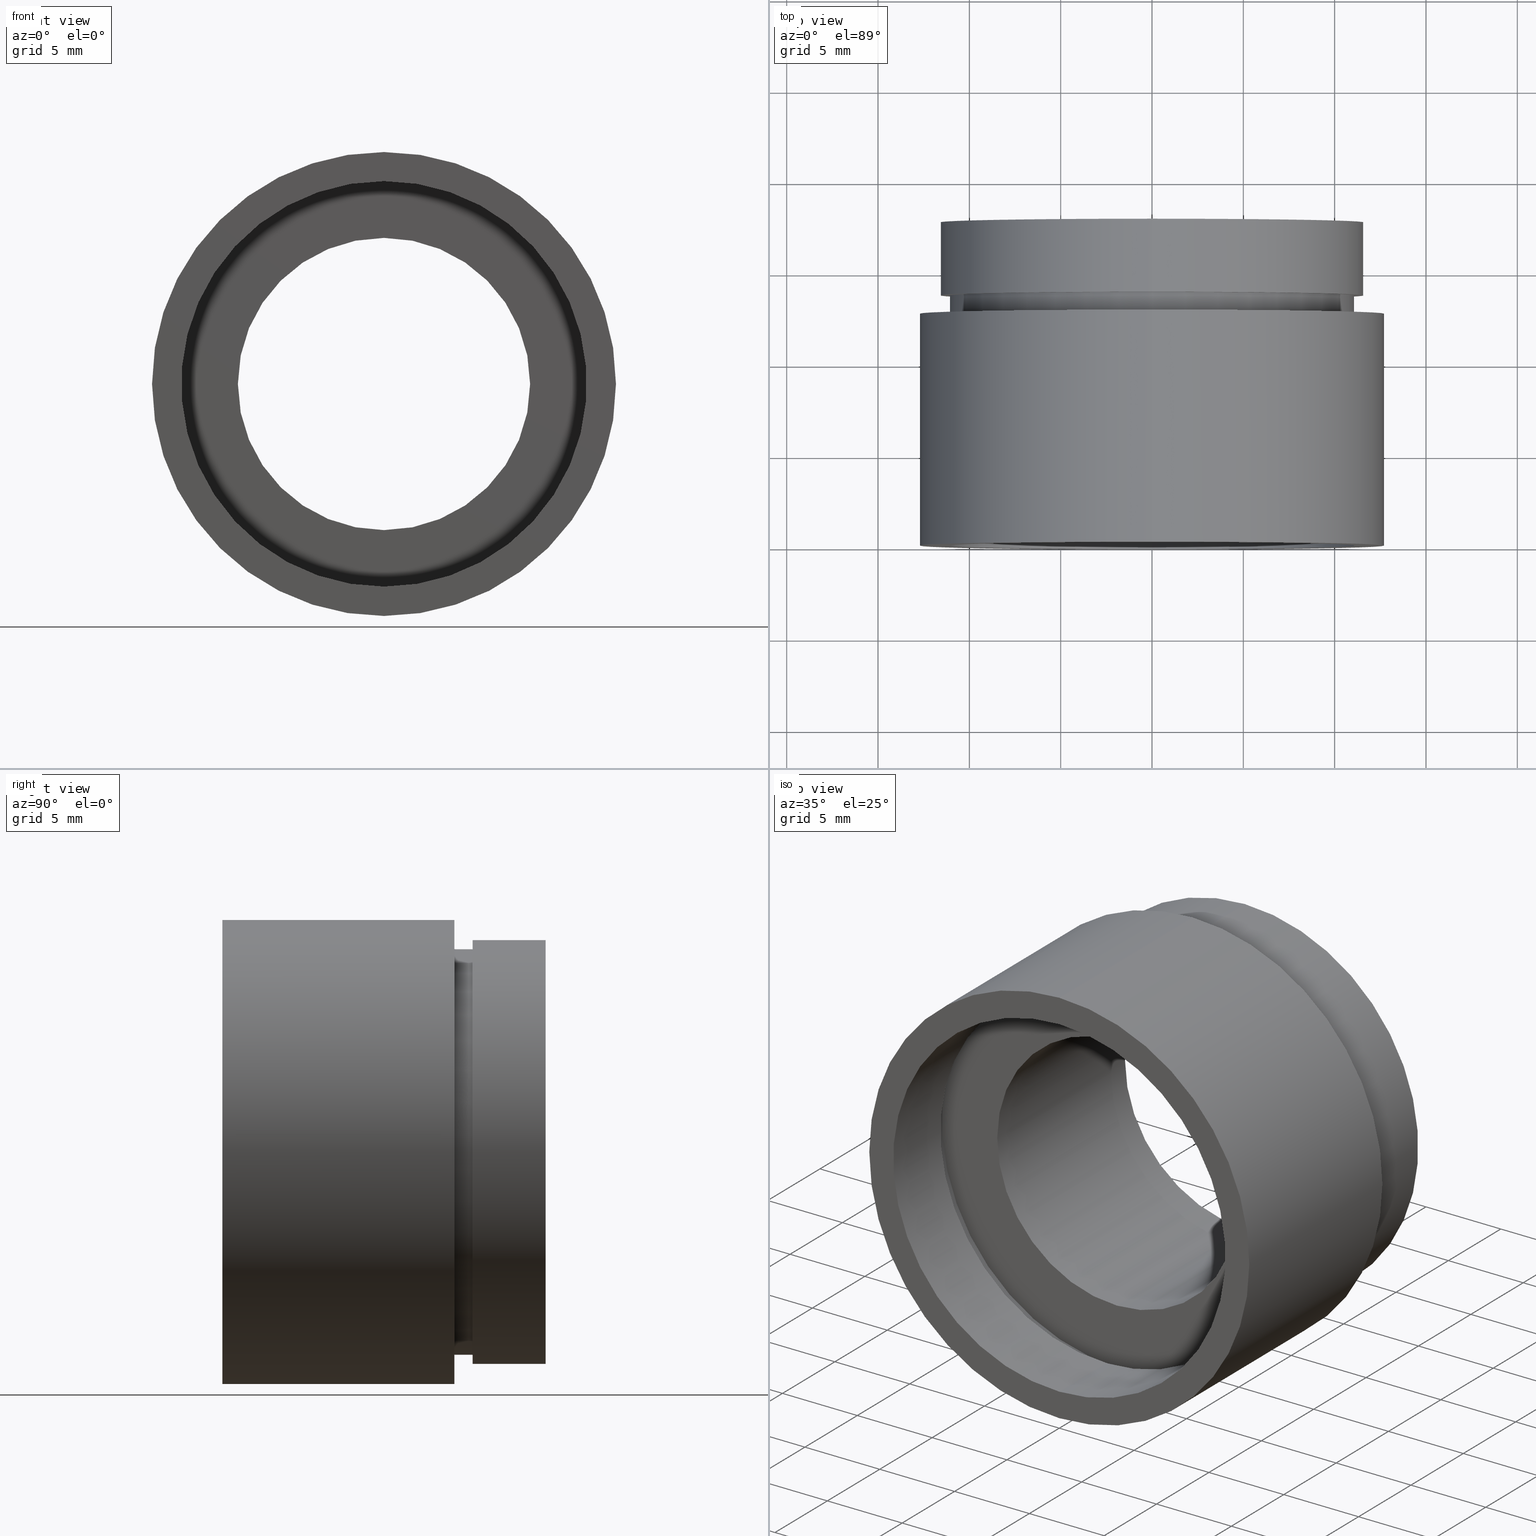
[diagram: canonical four-view strip — front | top / right | iso, engineering-drawing reading convention]
A machine part, canonical four-view strip (front | top / right | iso — engineering-drawing reading convention). The complete STEP part file that produces these views, byte-faithful:
ISO-10303-21;
HEADER;
FILE_DESCRIPTION (( 'STEP AP214' ),
    '1' );
FILE_NAME ('503070.STEP',
    '2019-09-10T01:41:34',
    ( '' ),
    ( '' ),
    'SwSTEP 2.0',
    'SolidWorks 2016',
    '' );
FILE_SCHEMA (( 'AUTOMOTIVE_DESIGN' ));
ENDSEC;

DATA;
#1 = ADVANCED_FACE ( 'NONE', ( #172 ), #606, .T. ) ;
#2 = APPLICATION_PROTOCOL_DEFINITION ( 'draft international standard', 'automotive_design', 1998, #5 ) ;
#3 = FILL_AREA_STYLE ('',( #453 ) ) ;
#4 = EDGE_LOOP ( 'NONE', ( #94, #389, #225, #102 ) ) ;
#5 = APPLICATION_CONTEXT ( 'automotive_design' ) ;
#6 = SURFACE_SIDE_STYLE ('',( #143 ) ) ;
#7 = UNCERTAINTY_MEASURE_WITH_UNIT (LENGTH_MEASURE( 1.000000000000000100E-005 ), #376, 'distance_accuracy_value', 'NONE');
#8 = PRESENTATION_LAYER_ASSIGNMENT (  '', '', ( #595 ) ) ;
#9 = ORIENTED_EDGE ( 'NONE', *, *, #440, .T. ) ;
#10 = EDGE_LOOP ( 'NONE', ( #241, #251, #447, #198 ) ) ;
#11 = MECHANICAL_DESIGN_GEOMETRIC_PRESENTATION_REPRESENTATION (  '', ( #249 ), #224 ) ;
#12 = AXIS2_PLACEMENT_3D ( 'NONE', #135, #36, #511 ) ;
#13 = COLOUR_RGB ( '',1.000000000000000000, 1.000000000000000000, 1.000000000000000000 ) ;
#14 = CIRCLE ( 'NONE', #160, 11.10000000000001700 ) ;
#15 = ORIENTED_EDGE ( 'NONE', *, *, #429, .T. ) ;
#16 = MECHANICAL_DESIGN_GEOMETRIC_PRESENTATION_REPRESENTATION (  '', ( #368 ), #486 ) ;
#17 = AXIS2_PLACEMENT_3D ( 'NONE', #229, #90, #474 ) ;
#18 = DIRECTION ( 'NONE',  ( -0.0000000000000000000, 1.000000000000000000, -0.0000000000000000000 ) ) ;
#19 = CARTESIAN_POINT ( 'NONE',  ( 0.0000000000000000000, 5.499999999999976900, 0.0000000000000000000 ) ) ;
#20 = COLOUR_RGB ( '',1.000000000000000000, 1.000000000000000000, 1.000000000000000000 ) ;
#21 = VERTEX_POINT ( 'NONE', #212 ) ;
#22 = SURFACE_STYLE_USAGE ( .BOTH. , #497 ) ;
#23 = DIRECTION ( 'NONE',  ( -0.0000000000000000000, 1.000000000000000000, -0.0000000000000000000 ) ) ;
#24 = PRODUCT_DEFINITION_FORMATION_WITH_SPECIFIED_SOURCE ( '�κ�', '', #378, .NOT_KNOWN. ) ;
#25 = STYLED_ITEM ( 'NONE', ( #123 ), #252 ) ;
#26 = CARTESIAN_POINT ( 'NONE',  ( 0.0000000000000000000, 5.499999999999976900, 11.70000000000001700 ) ) ;
#27 = SURFACE_SIDE_STYLE ('',( #227 ) ) ;
#28 = EDGE_LOOP ( 'NONE', ( #345, #104, #253, #405 ) ) ;
#29 =( NAMED_UNIT ( * ) PLANE_ANGLE_UNIT ( ) SI_UNIT ( $, .RADIAN. ) );
#30 = CARTESIAN_POINT ( 'NONE',  ( 0.0000000000000000000, 12.69999999999998900, 0.0000000000000000000 ) ) ;
#31 = STYLED_ITEM ( 'NONE', ( #60 ), #472 ) ;
#32 = CARTESIAN_POINT ( 'NONE',  ( 0.0000000000000000000, 161.3761669434274500, 12.70000000000002800 ) ) ;
#33 = FILL_AREA_STYLE ('',( #408 ) ) ;
#34 =( NAMED_UNIT ( * ) SI_UNIT ( $, .STERADIAN. ) SOLID_ANGLE_UNIT ( ) );
#35 = EDGE_LOOP ( 'NONE', ( #223, #570 ) ) ;
#36 = DIRECTION ( 'NONE',  ( -0.0000000000000000000, 1.000000000000000000, 0.0000000000000000000 ) ) ;
#37 = CYLINDRICAL_SURFACE ( 'NONE', #169, 12.70000000000002800 ) ;
#38 = EDGE_CURVE ( 'NONE', #353, #234, #381, .T. ) ;
#39 = ORIENTED_EDGE ( 'NONE', *, *, #81, .F. ) ;
#40 = DIRECTION ( 'NONE',  ( -0.0000000000000000000, 1.000000000000000000, -0.0000000000000000000 ) ) ;
#41 = CIRCLE ( 'NONE', #315, 11.10000000000001700 ) ;
#42 = VECTOR ( 'NONE', #221, 1000.000000000000000 ) ;
#43 = EDGE_CURVE ( 'NONE', #476, #70, #14, .T. ) ;
#44 = ADVANCED_FACE ( 'NONE', ( #468, #340 ), #304, .F. ) ;
#45 = EDGE_LOOP ( 'NONE', ( #182, #501, #58, #274 ) ) ;
#46 = PRODUCT_DEFINITION_CONTEXT ( 'detailed design', #5, 'design' ) ;
#47 =( NAMED_UNIT ( * ) SI_UNIT ( $, .STERADIAN. ) SOLID_ANGLE_UNIT ( ) );
#48 = VECTOR ( 'NONE', #273, 1000.000000000000000 ) ;
#49 = EDGE_CURVE ( 'NONE', #485, #70, #186, .T. ) ;
#50 = AXIS2_PLACEMENT_3D ( 'NONE', #288, #150, #75 ) ;
#51 = ORIENTED_EDGE ( 'NONE', *, *, #510, .T. ) ;
#52 = VECTOR ( 'NONE', #602, 1000.000000000000000 ) ;
#53 = FACE_OUTER_BOUND ( 'NONE', #481, .T. ) ;
#54 = ORIENTED_EDGE ( 'NONE', *, *, #97, .F. ) ;
#55 = PRESENTATION_LAYER_ASSIGNMENT (  '', '', ( #25 ) ) ;
#56 = MECHANICAL_DESIGN_GEOMETRIC_PRESENTATION_REPRESENTATION (  '', ( #531 ), #100 ) ;
#57 = ORIENTED_EDGE ( 'NONE', *, *, #448, .F. ) ;
#58 = ORIENTED_EDGE ( 'NONE', *, *, #275, .T. ) ;
#59 = AXIS2_PLACEMENT_3D ( 'NONE', #170, #354, #74 ) ;
#60 = PRESENTATION_STYLE_ASSIGNMENT (( #331 ) ) ;
#61 = DIRECTION ( 'NONE',  ( 0.0000000000000000000, 0.0000000000000000000, 1.000000000000000000 ) ) ;
#62 = CIRCLE ( 'NONE', #624, 11.10000000000001900 ) ;
#63 = CARTESIAN_POINT ( 'NONE',  ( 0.0000000000000000000, 5.499999999999976900, 0.0000000000000000000 ) ) ;
#64 = AXIS2_PLACEMENT_3D ( 'NONE', #458, #78, #218 ) ;
#65 =( LENGTH_UNIT ( ) NAMED_UNIT ( * ) SI_UNIT ( .MILLI., .METRE. ) );
#66 = EDGE_CURVE ( 'NONE', #70, #476, #116, .T. ) ;
#67 = CARTESIAN_POINT ( 'NONE',  ( 0.0000000000000000000, 17.69999999999996700, 0.0000000000000000000 ) ) ;
#68 = EDGE_LOOP ( 'NONE', ( #575, #192 ) ) ;
#69 = CIRCLE ( 'NONE', #357, 8.000000000000019500 ) ;
#70 = VERTEX_POINT ( 'NONE', #600 ) ;
#71 = CARTESIAN_POINT ( 'NONE',  ( 0.0000000000000000000, 161.3761669434274500, 0.0000000000000000000 ) ) ;
#72 = CARTESIAN_POINT ( 'NONE',  ( 0.0000000000000000000, -2.775557561562891400E-014, 0.0000000000000000000 ) ) ;
#73 = DIRECTION ( 'NONE',  ( -0.0000000000000000000, 1.000000000000000000, -0.0000000000000000000 ) ) ;
#74 = DIRECTION ( 'NONE',  ( 0.0000000000000000000, 0.0000000000000000000, 1.000000000000000000 ) ) ;
#75 = DIRECTION ( 'NONE',  ( 0.0000000000000000000, 0.0000000000000000000, 1.000000000000000000 ) ) ;
#76 = CARTESIAN_POINT ( 'NONE',  ( 0.0000000000000000000, 161.3761669434274500, 0.0000000000000000000 ) ) ;
#77 = PRESENTATION_STYLE_ASSIGNMENT (( #144 ) ) ;
#78 = DIRECTION ( 'NONE',  ( 0.0000000000000000000, -1.000000000000000000, 0.0000000000000000000 ) ) ;
#79 = CARTESIAN_POINT ( 'NONE',  ( 0.0000000000000000000, 4.499999999999976000, 11.70000000000001700 ) ) ;
#80 = CARTESIAN_POINT ( 'NONE',  ( 1.420590287010931700E-015, 17.69999999999996700, -11.60000000000001700 ) ) ;
#81 = EDGE_CURVE ( 'NONE', #469, #373, #534, .T. ) ;
#82 = PLANE ( 'NONE',  #204 ) ;
#83 = VERTEX_POINT ( 'NONE', #348 ) ;
#84 = EDGE_LOOP ( 'NONE', ( #581, #344, #101, #109 ) ) ;
#85 = DIRECTION ( 'NONE',  ( -0.0000000000000000000, 1.000000000000000000, -0.0000000000000000000 ) ) ;
#86 = CARTESIAN_POINT ( 'NONE',  ( 0.0000000000000000000, 161.3761669434274500, 0.0000000000000000000 ) ) ;
#87 = DIRECTION ( 'NONE',  ( -0.0000000000000000000, 1.000000000000000000, -0.0000000000000000000 ) ) ;
#88 = LINE ( 'NONE', #32, #436 ) ;
#89 = DIRECTION ( 'NONE',  ( 0.0000000000000000000, 0.0000000000000000000, 1.000000000000000000 ) ) ;
#90 = DIRECTION ( 'NONE',  ( 0.0000000000000000000, 0.0000000000000000000, 1.000000000000000000 ) ) ;
#91 = ORIENTED_EDGE ( 'NONE', *, *, #152, .F. ) ;
#92 = CIRCLE ( 'NONE', #584, 8.000000000000019500 ) ;
#93 = FILL_AREA_STYLE_COLOUR ( '', #146 ) ;
#94 = ORIENTED_EDGE ( 'NONE', *, *, #510, .F. ) ;
#95 = ADVANCED_FACE ( 'NONE', ( #53 ), #240, .F. ) ;
#96 = FACE_OUTER_BOUND ( 'NONE', #84, .T. ) ;
#97 = EDGE_CURVE ( 'NONE', #173, #597, #92, .T. ) ;
#98 =( NAMED_UNIT ( * ) PLANE_ANGLE_UNIT ( ) SI_UNIT ( $, .RADIAN. ) );
#99 = DIRECTION ( 'NONE',  ( -0.0000000000000000000, 1.000000000000000000, -0.0000000000000000000 ) ) ;
#100 =( GEOMETRIC_REPRESENTATION_CONTEXT ( 3 ) GLOBAL_UNCERTAINTY_ASSIGNED_CONTEXT ( ( #163 ) ) GLOBAL_UNIT_ASSIGNED_CONTEXT ( ( #424, #466, #471 ) ) REPRESENTATION_CONTEXT ( 'NONE', 'WORKASPACE' ) );
#101 = ORIENTED_EDGE ( 'NONE', *, *, #478, .T. ) ;
#102 = ORIENTED_EDGE ( 'NONE', *, *, #195, .T. ) ;
#103 = AXIS2_PLACEMENT_3D ( 'NONE', #166, #549, #490 ) ;
#104 = ORIENTED_EDGE ( 'NONE', *, *, #207, .T. ) ;
#105 = AXIS2_PLACEMENT_3D ( 'NONE', #518, #140, #374 ) ;
#106 = VERTEX_POINT ( 'NONE', #443 ) ;
#107 = AXIS2_PLACEMENT_3D ( 'NONE', #71, #302, #598 ) ;
#108 = CIRCLE ( 'NONE', #242, 11.60000000000001700 ) ;
#109 = ORIENTED_EDGE ( 'NONE', *, *, #81, .T. ) ;
#110 = EDGE_CURVE ( 'NONE', #165, #83, #525, .T. ) ;
#111 = UNCERTAINTY_MEASURE_WITH_UNIT (LENGTH_MEASURE( 1.000000000000000100E-005 ), #322, 'distance_accuracy_value', 'NONE');
#112 = CIRCLE ( 'NONE', #298, 12.70000000000003700 ) ;
#113 = CYLINDRICAL_SURFACE ( 'NONE', #431, 11.70000000000001700 ) ;
#114 = DIRECTION ( 'NONE',  ( 0.0000000000000000000, -0.0000000000000000000, -1.000000000000000000 ) ) ;
#115 = DIRECTION ( 'NONE',  ( -0.0000000000000000000, 1.000000000000000000, -0.0000000000000000000 ) ) ;
#116 = CIRCLE ( 'NONE', #121, 11.10000000000001700 ) ;
#117 = ORIENTED_EDGE ( 'NONE', *, *, #540, .T. ) ;
#118 = ADVANCED_FACE ( 'NONE', ( #393 ), #446, .T. ) ;
#119 = CARTESIAN_POINT ( 'NONE',  ( 0.0000000000000000000, 17.69999999999996700, 0.0000000000000000000 ) ) ;
#120 = VECTOR ( 'NONE', #412, 1000.000000000000000 ) ;
#121 = AXIS2_PLACEMENT_3D ( 'NONE', #168, #544, #451 ) ;
#122 = SHAPE_DEFINITION_REPRESENTATION ( #592, #265 ) ;
#123 = PRESENTATION_STYLE_ASSIGNMENT (( #609 ) ) ;
#124 = ORIENTED_EDGE ( 'NONE', *, *, #154, .F. ) ;
#125 = CARTESIAN_POINT ( 'NONE',  ( 0.0000000000000000000, -2.775557561562891400E-014, 0.0000000000000000000 ) ) ;
#126 =( NAMED_UNIT ( * ) SI_UNIT ( $, .STERADIAN. ) SOLID_ANGLE_UNIT ( ) );
#127 =( GEOMETRIC_REPRESENTATION_CONTEXT ( 3 ) GLOBAL_UNCERTAINTY_ASSIGNED_CONTEXT ( ( #7 ) ) GLOBAL_UNIT_ASSIGNED_CONTEXT ( ( #376, #98, #323 ) ) REPRESENTATION_CONTEXT ( 'NONE', 'WORKASPACE' ) );
#128 = CARTESIAN_POINT ( 'NONE',  ( 9.797174393178849300E-016, 161.3761669434274500, -8.000000000000019500 ) ) ;
#129 = CARTESIAN_POINT ( 'NONE',  ( 0.0000000000000000000, 13.69999999999999000, 0.0000000000000000000 ) ) ;
#130 = CARTESIAN_POINT ( 'NONE',  ( 1.420590287010931700E-015, 13.69999999999999000, -11.60000000000001700 ) ) ;
#131 = CARTESIAN_POINT ( 'NONE',  ( 0.0000000000000000000, 12.69999999999998900, 0.0000000000000000000 ) ) ;
#132 = CIRCLE ( 'NONE', #355, 11.70000000000001700 ) ;
#133 = CARTESIAN_POINT ( 'NONE',  ( 12.70000000000003700, 12.69999999999998200, 0.0000000000000000000 ) ) ;
#134 = DIRECTION ( 'NONE',  ( 0.0000000000000000000, 0.0000000000000000000, 1.000000000000000000 ) ) ;
#135 = CARTESIAN_POINT ( 'NONE',  ( 11.10000000000001700, 13.69999999999998000, 0.0000000000000000000 ) ) ;
#136 = VERTEX_POINT ( 'NONE', #612 ) ;
#137 = FACE_OUTER_BOUND ( 'NONE', #28, .T. ) ;
#138 = CARTESIAN_POINT ( 'NONE',  ( 0.0000000000000000000, 4.499999999999976000, 11.10000000000001900 ) ) ;
#139 = ORIENTED_EDGE ( 'NONE', *, *, #589, .T. ) ;
#140 = DIRECTION ( 'NONE',  ( -0.0000000000000000000, 1.000000000000000000, -0.0000000000000000000 ) ) ;
#141 = AXIS2_PLACEMENT_3D ( 'NONE', #517, #85, #309 ) ;
#142 = LINE ( 'NONE', #449, #42 ) ;
#143 = SURFACE_STYLE_FILL_AREA ( #334 ) ;
#144 = SURFACE_STYLE_USAGE ( .BOTH. , #568 ) ;
#145 = ADVANCED_FACE ( 'NONE', ( #286, #434 ), #364, .F. ) ;
#146 = COLOUR_RGB ( '',1.000000000000000000, 1.000000000000000000, 1.000000000000000000 ) ;
#147 = ORIENTED_EDGE ( 'NONE', *, *, #43, .F. ) ;
#148 = ORIENTED_EDGE ( 'NONE', *, *, #202, .F. ) ;
#149 = DIRECTION ( 'NONE',  ( 0.0000000000000000000, 0.0000000000000000000, 1.000000000000000000 ) ) ;
#150 = DIRECTION ( 'NONE',  ( -0.0000000000000000000, 1.000000000000000000, -0.0000000000000000000 ) ) ;
#151 = LINE ( 'NONE', #605, #533 ) ;
#152 = EDGE_CURVE ( 'NONE', #397, #597, #352, .T. ) ;
#153 = PRESENTATION_LAYER_ASSIGNMENT (  '', '', ( #531 ) ) ;
#154 = EDGE_CURVE ( 'NONE', #418, #433, #156, .T. ) ;
#155 = ORIENTED_EDGE ( 'NONE', *, *, #574, .T. ) ;
#156 = CIRCLE ( 'NONE', #141, 11.70000000000001700 ) ;
#157 = LINE ( 'NONE', #618, #337 ) ;
#158 = EDGE_LOOP ( 'NONE', ( #201, #51, #596, #317 ) ) ;
#159 = VERTEX_POINT ( 'NONE', #370 ) ;
#160 = AXIS2_PLACEMENT_3D ( 'NONE', #594, #259, #208 ) ;
#161 =( GEOMETRIC_REPRESENTATION_CONTEXT ( 3 ) GLOBAL_UNCERTAINTY_ASSIGNED_CONTEXT ( ( #193 ) ) GLOBAL_UNIT_ASSIGNED_CONTEXT ( ( #239, #365, #34 ) ) REPRESENTATION_CONTEXT ( 'NONE', 'WORKASPACE' ) );
#162 = FACE_OUTER_BOUND ( 'NONE', #571, .T. ) ;
#163 = UNCERTAINTY_MEASURE_WITH_UNIT (LENGTH_MEASURE( 1.000000000000000100E-005 ), #424, 'distance_accuracy_value', 'NONE');
#164 = CIRCLE ( 'NONE', #296, 8.000000000000019500 ) ;
#165 = VERTEX_POINT ( 'NONE', #80 ) ;
#166 = CARTESIAN_POINT ( 'NONE',  ( 0.0000000000000000000, 17.69999999999996700, 0.0000000000000000000 ) ) ;
#167 = AXIS2_PLACEMENT_3D ( 'NONE', #262, #174, #512 ) ;
#168 = CARTESIAN_POINT ( 'NONE',  ( 0.0000000000000000000, 13.69999999999999000, 0.0000000000000000000 ) ) ;
#169 = AXIS2_PLACEMENT_3D ( 'NONE', #76, #495, #588 ) ;
#170 = CARTESIAN_POINT ( 'NONE',  ( 0.0000000000000000000, 4.499999999999976000, 0.0000000000000000000 ) ) ;
#171 = FILL_AREA_STYLE_COLOUR ( '', #623 ) ;
#172 = FACE_OUTER_BOUND ( 'NONE', #552, .T. ) ;
#173 = VERTEX_POINT ( 'NONE', #457 ) ;
#174 = DIRECTION ( 'NONE',  ( -0.0000000000000000000, 1.000000000000000000, 0.0000000000000000000 ) ) ;
#175 = CARTESIAN_POINT ( 'NONE',  ( 0.0000000000000000000, 161.3761669434274500, 0.0000000000000000000 ) ) ;
#176 = VECTOR ( 'NONE', #564, 1000.000000000000000 ) ;
#177 = DIRECTION ( 'NONE',  ( 0.0000000000000000000, 0.0000000000000000000, 1.000000000000000000 ) ) ;
#178 = CARTESIAN_POINT ( 'NONE',  ( 1.555301434917142000E-015, 161.3761669434274500, -12.70000000000002800 ) ) ;
#179 = EDGE_CURVE ( 'NONE', #106, #397, #164, .T. ) ;
#180 = DIRECTION ( 'NONE',  ( 0.0000000000000000000, 0.0000000000000000000, 1.000000000000000000 ) ) ;
#181 =( NAMED_UNIT ( * ) PLANE_ANGLE_UNIT ( ) SI_UNIT ( $, .RADIAN. ) );
#182 = ORIENTED_EDGE ( 'NONE', *, *, #49, .F. ) ;
#183 = DIRECTION ( 'NONE',  ( -0.0000000000000000000, 1.000000000000000000, -0.0000000000000000000 ) ) ;
#184 = DIRECTION ( 'NONE',  ( -0.0000000000000000000, 1.000000000000000000, -0.0000000000000000000 ) ) ;
#185 = ADVANCED_FACE ( 'NONE', ( #137 ), #37, .T. ) ;
#186 = LINE ( 'NONE', #444, #500 ) ;
#187 = MECHANICAL_DESIGN_GEOMETRIC_PRESENTATION_REPRESENTATION (  '', ( #31 ), #614 ) ;
#188 = EDGE_CURVE ( 'NONE', #83, #165, #529, .T. ) ;
#189 =( NAMED_UNIT ( * ) SI_UNIT ( $, .STERADIAN. ) SOLID_ANGLE_UNIT ( ) );
#190 = PRESENTATION_STYLE_ASSIGNMENT (( #329 ) ) ;
#191 = EDGE_LOOP ( 'NONE', ( #542, #388 ) ) ;
#192 = ORIENTED_EDGE ( 'NONE', *, *, #110, .T. ) ;
#193 = UNCERTAINTY_MEASURE_WITH_UNIT (LENGTH_MEASURE( 1.000000000000000100E-005 ), #239, 'distance_accuracy_value', 'NONE');
#194 = PRESENTATION_LAYER_ASSIGNMENT (  '', '', ( #249 ) ) ;
#195 = EDGE_CURVE ( 'NONE', #433, #418, #398, .T. ) ;
#196 = ORIENTED_EDGE ( 'NONE', *, *, #440, .F. ) ;
#197 = ORIENTED_EDGE ( 'NONE', *, *, #97, .T. ) ;
#198 = ORIENTED_EDGE ( 'NONE', *, *, #110, .F. ) ;
#199 = SURFACE_STYLE_FILL_AREA ( #277 ) ;
#200 = FACE_OUTER_BOUND ( 'NONE', #158, .T. ) ;
#201 = ORIENTED_EDGE ( 'NONE', *, *, #578, .F. ) ;
#202 = EDGE_CURVE ( 'NONE', #620, #136, #245, .T. ) ;
#203 = ORIENTED_EDGE ( 'NONE', *, *, #236, .F. ) ;
#204 = AXIS2_PLACEMENT_3D ( 'NONE', #133, #459, #498 ) ;
#205 = FACE_OUTER_BOUND ( 'NONE', #210, .T. ) ;
#206 =( NAMED_UNIT ( * ) SI_UNIT ( $, .STERADIAN. ) SOLID_ANGLE_UNIT ( ) );
#207 = EDGE_CURVE ( 'NONE', #21, #159, #272, .T. ) ;
#208 = DIRECTION ( 'NONE',  ( 0.0000000000000000000, 0.0000000000000000000, 1.000000000000000000 ) ) ;
#209 = DIRECTION ( 'NONE',  ( 0.0000000000000000000, 0.0000000000000000000, 1.000000000000000000 ) ) ;
#210 = EDGE_LOOP ( 'NONE', ( #203, #610, #430, #57 ) ) ;
#211 = EDGE_LOOP ( 'NONE', ( #516, #526 ) ) ;
#212 = CARTESIAN_POINT ( 'NONE',  ( 1.555301434917141200E-015, -2.775557561562891400E-014, -12.70000000000001900 ) ) ;
#213 = DIRECTION ( 'NONE',  ( 0.0000000000000000000, -1.000000000000000000, 0.0000000000000000000 ) ) ;
#214 = CARTESIAN_POINT ( 'NONE',  ( 0.0000000000000000000, -2.775557561562891400E-014, 0.0000000000000000000 ) ) ;
#215 = CARTESIAN_POINT ( 'NONE',  ( 0.0000000000000000000, 4.499999999999976000, 0.0000000000000000000 ) ) ;
#216 = DIRECTION ( 'NONE',  ( 0.0000000000000000000, 0.0000000000000000000, 1.000000000000000000 ) ) ;
#217 =( GEOMETRIC_REPRESENTATION_CONTEXT ( 3 ) GLOBAL_UNCERTAINTY_ASSIGNED_CONTEXT ( ( #421 ) ) GLOBAL_UNIT_ASSIGNED_CONTEXT ( ( #563, #181, #189 ) ) REPRESENTATION_CONTEXT ( 'NONE', 'WORKASPACE' ) );
#218 = DIRECTION ( 'NONE',  ( 0.0000000000000000000, -0.0000000000000000000, -1.000000000000000000 ) ) ;
#219 = CARTESIAN_POINT ( 'NONE',  ( 0.0000000000000000000, 13.69999999999999000, 11.60000000000001700 ) ) ;
#220 = SURFACE_STYLE_USAGE ( .BOTH. , #27 ) ;
#221 = DIRECTION ( 'NONE',  ( -0.0000000000000000000, 1.000000000000000000, -0.0000000000000000000 ) ) ;
#222 = DIRECTION ( 'NONE',  ( -0.0000000000000000000, 1.000000000000000000, -0.0000000000000000000 ) ) ;
#223 = ORIENTED_EDGE ( 'NONE', *, *, #589, .F. ) ;
#224 =( GEOMETRIC_REPRESENTATION_CONTEXT ( 3 ) GLOBAL_UNCERTAINTY_ASSIGNED_CONTEXT ( ( #111 ) ) GLOBAL_UNIT_ASSIGNED_CONTEXT ( ( #322, #321, #465 ) ) REPRESENTATION_CONTEXT ( 'NONE', 'WORKASPACE' ) );
#225 = ORIENTED_EDGE ( 'NONE', *, *, #475, .T. ) ;
#226 = DIRECTION ( 'NONE',  ( -0.0000000000000000000, 1.000000000000000000, -0.0000000000000000000 ) ) ;
#227 = SURFACE_STYLE_FILL_AREA ( #505 ) ;
#228 = CARTESIAN_POINT ( 'NONE',  ( 0.0000000000000000000, 161.3761669434274500, 0.0000000000000000000 ) ) ;
#229 = CARTESIAN_POINT ( 'NONE',  ( 0.0000000000000000000, 0.0000000000000000000, 0.0000000000000000000 ) ) ;
#230 = DIRECTION ( 'NONE',  ( -0.0000000000000000000, 1.000000000000000000, -0.0000000000000000000 ) ) ;
#231 = ORIENTED_EDGE ( 'NONE', *, *, #236, .T. ) ;
#232 = DIRECTION ( 'NONE',  ( -0.0000000000000000000, 1.000000000000000000, -0.0000000000000000000 ) ) ;
#233 = FILL_AREA_STYLE ('',( #93 ) ) ;
#234 = VERTEX_POINT ( 'NONE', #305 ) ;
#235 = AXIS2_PLACEMENT_3D ( 'NONE', #555, #611, #557 ) ;
#236 = EDGE_CURVE ( 'NONE', #397, #106, #69, .T. ) ;
#237 = CIRCLE ( 'NONE', #523, 11.10000000000002300 ) ;
#238 = APPLICATION_CONTEXT ( 'automotive_design' ) ;
#239 =( LENGTH_UNIT ( ) NAMED_UNIT ( * ) SI_UNIT ( .MILLI., .METRE. ) );
#240 = CYLINDRICAL_SURFACE ( 'NONE', #608, 8.000000000000019500 ) ;
#241 = ORIENTED_EDGE ( 'NONE', *, *, #574, .F. ) ;
#242 = AXIS2_PLACEMENT_3D ( 'NONE', #129, #452, #180 ) ;
#243 = UNCERTAINTY_MEASURE_WITH_UNIT (LENGTH_MEASURE( 1.000000000000000100E-005 ), #358, 'distance_accuracy_value', 'NONE');
#244 = EDGE_LOOP ( 'NONE', ( #9, #117, #445, #271 ) ) ;
#245 = CIRCLE ( 'NONE', #528, 11.10000000000002300 ) ;
#246 = ORIENTED_EDGE ( 'NONE', *, *, #562, .F. ) ;
#247 = AXIS2_PLACEMENT_3D ( 'NONE', #281, #507, #311 ) ;
#248 = ORIENTED_EDGE ( 'NONE', *, *, #392, .F. ) ;
#249 = STYLED_ITEM ( 'NONE', ( #77 ), #442 ) ;
#250 = VECTOR ( 'NONE', #294, 1000.000000000000000 ) ;
#251 = ORIENTED_EDGE ( 'NONE', *, *, #562, .T. ) ;
#252 = ADVANCED_FACE ( 'NONE', ( #260 ), #293, .F. ) ;
#253 = ORIENTED_EDGE ( 'NONE', *, *, #423, .T. ) ;
#254 = PRESENTATION_LAYER_ASSIGNMENT (  '', '', ( #291 ) ) ;
#255 = DIRECTION ( 'NONE',  ( -0.0000000000000000000, 1.000000000000000000, -0.0000000000000000000 ) ) ;
#256 = FACE_BOUND ( 'NONE', #35, .T. ) ;
#257 = EDGE_CURVE ( 'NONE', #363, #382, #622, .T. ) ;
#258 = DIRECTION ( 'NONE',  ( 0.0000000000000000000, 0.0000000000000000000, 1.000000000000000000 ) ) ;
#259 = DIRECTION ( 'NONE',  ( -0.0000000000000000000, 1.000000000000000000, -0.0000000000000000000 ) ) ;
#260 = FACE_OUTER_BOUND ( 'NONE', #586, .T. ) ;
#261 = CARTESIAN_POINT ( 'NONE',  ( 9.797174393178849300E-016, 5.499999999999976900, -8.000000000000019500 ) ) ;
#262 = CARTESIAN_POINT ( 'NONE',  ( 11.10000000000002300, -1.590039098016662300E-014, 0.0000000000000000000 ) ) ;
#263 =( NAMED_UNIT ( * ) PLANE_ANGLE_UNIT ( ) SI_UNIT ( $, .RADIAN. ) );
#264 =( LENGTH_UNIT ( ) NAMED_UNIT ( * ) SI_UNIT ( .MILLI., .METRE. ) );
#265 = ADVANCED_BREP_SHAPE_REPRESENTATION ( '503070', ( #301, #17 ), #127 ) ;
#266 = AXIS2_PLACEMENT_3D ( 'NONE', #553, #396, #546 ) ;
#267 = CARTESIAN_POINT ( 'NONE',  ( 0.0000000000000000000, 161.3761669434274500, 11.70000000000001700 ) ) ;
#268 = CARTESIAN_POINT ( 'NONE',  ( 0.0000000000000000000, 12.69999999999998900, 12.70000000000003700 ) ) ;
#269 = DIRECTION ( 'NONE',  ( -0.0000000000000000000, 1.000000000000000000, -0.0000000000000000000 ) ) ;
#270 = DIRECTION ( 'NONE',  ( -0.0000000000000000000, 1.000000000000000000, -0.0000000000000000000 ) ) ;
#271 = ORIENTED_EDGE ( 'NONE', *, *, #423, .F. ) ;
#272 = CIRCLE ( 'NONE', #383, 12.70000000000001900 ) ;
#273 = DIRECTION ( 'NONE',  ( -0.0000000000000000000, 1.000000000000000000, -0.0000000000000000000 ) ) ;
#274 = ORIENTED_EDGE ( 'NONE', *, *, #66, .F. ) ;
#275 = EDGE_CURVE ( 'NONE', #515, #476, #142, .T. ) ;
#276 = CYLINDRICAL_SURFACE ( 'NONE', #566, 11.10000000000002100 ) ;
#277 = FILL_AREA_STYLE ('',( #366 ) ) ;
#278 = ADVANCED_FACE ( 'NONE', ( #96 ), #276, .F. ) ;
#279 = PRESENTATION_STYLE_ASSIGNMENT (( #22 ) ) ;
#280 = ORIENTED_EDGE ( 'NONE', *, *, #275, .F. ) ;
#281 = CARTESIAN_POINT ( 'NONE',  ( 0.0000000000000000000, 12.69999999999998900, 0.0000000000000000000 ) ) ;
#282 = PRESENTATION_LAYER_ASSIGNMENT (  '', '', ( #368 ) ) ;
#283 = CARTESIAN_POINT ( 'NONE',  ( 1.359357947053564500E-015, 4.499999999999976000, -11.10000000000001900 ) ) ;
#284 = CIRCLE ( 'NONE', #422, 11.60000000000001700 ) ;
#285 = AXIS2_PLACEMENT_3D ( 'NONE', #131, #270, #508 ) ;
#286 = FACE_OUTER_BOUND ( 'NONE', #561, .T. ) ;
#287 = VERTEX_POINT ( 'NONE', #130 ) ;
#288 = CARTESIAN_POINT ( 'NONE',  ( 0.0000000000000000000, 17.69999999999996700, 0.0000000000000000000 ) ) ;
#289 = CYLINDRICAL_SURFACE ( 'NONE', #400, 8.000000000000019500 ) ;
#290 = CIRCLE ( 'NONE', #105, 12.70000000000001900 ) ;
#291 = STYLED_ITEM ( 'NONE', ( #190 ), #301 ) ;
#292 =( GEOMETRIC_REPRESENTATION_CONTEXT ( 3 ) GLOBAL_UNCERTAINTY_ASSIGNED_CONTEXT ( ( #243 ) ) GLOBAL_UNIT_ASSIGNED_CONTEXT ( ( #358, #407, #206 ) ) REPRESENTATION_CONTEXT ( 'NONE', 'WORKASPACE' ) );
#293 = CYLINDRICAL_SURFACE ( 'NONE', #395, 11.10000000000002100 ) ;
#294 = DIRECTION ( 'NONE',  ( -0.0000000000000000000, 1.000000000000000000, -0.0000000000000000000 ) ) ;
#295 = LINE ( 'NONE', #267, #367 ) ;
#296 = AXIS2_PLACEMENT_3D ( 'NONE', #63, #303, #258 ) ;
#297 = ORIENTED_EDGE ( 'NONE', *, *, #524, .T. ) ;
#298 = AXIS2_PLACEMENT_3D ( 'NONE', #30, #269, #617 ) ;
#299 = DIRECTION ( 'NONE',  ( 0.0000000000000000000, 0.0000000000000000000, 1.000000000000000000 ) ) ;
#300 = LINE ( 'NONE', #567, #48 ) ;
#301 = MANIFOLD_SOLID_BREP ( '��ת1', #484 ) ;
#302 = DIRECTION ( 'NONE',  ( -0.0000000000000000000, 1.000000000000000000, -0.0000000000000000000 ) ) ;
#303 = DIRECTION ( 'NONE',  ( -0.0000000000000000000, 1.000000000000000000, -0.0000000000000000000 ) ) ;
#304 = PLANE ( 'NONE',  #554 ) ;
#305 = CARTESIAN_POINT ( 'NONE',  ( 1.432836755002405500E-015, 4.499999999999976000, -11.70000000000001700 ) ) ;
#306 = ORIENTED_EDGE ( 'NONE', *, *, #343, .T. ) ;
#307 = CARTESIAN_POINT ( 'NONE',  ( 0.0000000000000000000, 161.3761669434274500, 0.0000000000000000000 ) ) ;
#308 = CARTESIAN_POINT ( 'NONE',  ( 0.0000000000000000000, 161.3761669434274500, 0.0000000000000000000 ) ) ;
#309 = DIRECTION ( 'NONE',  ( 0.0000000000000000000, 0.0000000000000000000, 1.000000000000000000 ) ) ;
#310 = MECHANICAL_DESIGN_GEOMETRIC_PRESENTATION_REPRESENTATION (  '', ( #595 ), #292 ) ;
#311 = DIRECTION ( 'NONE',  ( 0.0000000000000000000, 0.0000000000000000000, 1.000000000000000000 ) ) ;
#312 = DIRECTION ( 'NONE',  ( 0.0000000000000000000, 0.0000000000000000000, 1.000000000000000000 ) ) ;
#313 = CARTESIAN_POINT ( 'NONE',  ( 0.0000000000000000000, 161.3761669434274500, 0.0000000000000000000 ) ) ;
#314 = DIRECTION ( 'NONE',  ( 0.0000000000000000000, 0.0000000000000000000, 1.000000000000000000 ) ) ;
#315 = AXIS2_PLACEMENT_3D ( 'NONE', #369, #87, #134 ) ;
#316 = SURFACE_STYLE_USAGE ( .BOTH. , #558 ) ;
#317 = ORIENTED_EDGE ( 'NONE', *, *, #475, .F. ) ;
#318 =( LENGTH_UNIT ( ) NAMED_UNIT ( * ) SI_UNIT ( .MILLI., .METRE. ) );
#319 = CARTESIAN_POINT ( 'NONE',  ( 1.432836755002405500E-015, 161.3761669434274500, -11.70000000000001700 ) ) ;
#320 = FACE_OUTER_BOUND ( 'NONE', #191, .T. ) ;
#321 =( NAMED_UNIT ( * ) PLANE_ANGLE_UNIT ( ) SI_UNIT ( $, .RADIAN. ) );
#322 =( LENGTH_UNIT ( ) NAMED_UNIT ( * ) SI_UNIT ( .MILLI., .METRE. ) );
#323 =( NAMED_UNIT ( * ) SI_UNIT ( $, .STERADIAN. ) SOLID_ANGLE_UNIT ( ) );
#324 = PRESENTATION_LAYER_ASSIGNMENT (  '', '', ( #372 ) ) ;
#325 = VECTOR ( 'NONE', #232, 1000.000000000000000 ) ;
#326 = ADVANCED_FACE ( 'NONE', ( #256, #590 ), #82, .F. ) ;
#327 = AXIS2_PLACEMENT_3D ( 'NONE', #67, #541, #550 ) ;
#328 = PRODUCT_CONTEXT ( 'NONE', #238, 'mechanical' ) ;
#329 = SURFACE_STYLE_USAGE ( .BOTH. , #411 ) ;
#330 = SURFACE_STYLE_FILL_AREA ( #3 ) ;
#331 = SURFACE_STYLE_USAGE ( .BOTH. , #6 ) ;
#332 = FILL_AREA_STYLE ('',( #599 ) ) ;
#333 = VERTEX_POINT ( 'NONE', #219 ) ;
#334 = FILL_AREA_STYLE ('',( #387 ) ) ;
#335 = EDGE_LOOP ( 'NONE', ( #54, #248 ) ) ;
#336 = AXIS2_PLACEMENT_3D ( 'NONE', #19, #350, #209 ) ;
#337 = VECTOR ( 'NONE', #183, 1000.000000000000000 ) ;
#338 = PRESENTATION_STYLE_ASSIGNMENT (( #316 ) ) ;
#339 = AXIS2_PLACEMENT_3D ( 'NONE', #308, #73, #312 ) ;
#340 = FACE_OUTER_BOUND ( 'NONE', #68, .T. ) ;
#341 = ORIENTED_EDGE ( 'NONE', *, *, #437, .F. ) ;
#342 = PRESENTATION_STYLE_ASSIGNMENT (( #572 ) ) ;
#343 = EDGE_CURVE ( 'NONE', #136, #620, #237, .T. ) ;
#344 = ORIENTED_EDGE ( 'NONE', *, *, #343, .F. ) ;
#345 = ORIENTED_EDGE ( 'NONE', *, *, #540, .F. ) ;
#346 = PRODUCT_DEFINITION ( 'δ֪', '', #24, #46 ) ;
#347 = CYLINDRICAL_SURFACE ( 'NONE', #576, 11.60000000000001700 ) ;
#348 = CARTESIAN_POINT ( 'NONE',  ( 0.0000000000000000000, 17.69999999999996700, 11.60000000000001700 ) ) ;
#349 = FACE_OUTER_BOUND ( 'NONE', #4, .T. ) ;
#350 = DIRECTION ( 'NONE',  ( -0.0000000000000000000, 1.000000000000000000, -0.0000000000000000000 ) ) ;
#351 = ADVANCED_FACE ( 'NONE', ( #427, #380 ), #573, .F. ) ;
#352 = LINE ( 'NONE', #128, #325 ) ;
#353 = VERTEX_POINT ( 'NONE', #79 ) ;
#354 = DIRECTION ( 'NONE',  ( -0.0000000000000000000, 1.000000000000000000, -0.0000000000000000000 ) ) ;
#355 = AXIS2_PLACEMENT_3D ( 'NONE', #215, #359, #314 ) ;
#356 = DIRECTION ( 'NONE',  ( -0.0000000000000000000, 1.000000000000000000, -0.0000000000000000000 ) ) ;
#357 = AXIS2_PLACEMENT_3D ( 'NONE', #604, #559, #504 ) ;
#358 =( LENGTH_UNIT ( ) NAMED_UNIT ( * ) SI_UNIT ( .MILLI., .METRE. ) );
#359 = DIRECTION ( 'NONE',  ( -0.0000000000000000000, 1.000000000000000000, -0.0000000000000000000 ) ) ;
#360 = DIRECTION ( 'NONE',  ( -0.0000000000000000000, 1.000000000000000000, -0.0000000000000000000 ) ) ;
#361 = DIRECTION ( 'NONE',  ( 0.0000000000000000000, 0.0000000000000000000, 1.000000000000000000 ) ) ;
#362 = CARTESIAN_POINT ( 'NONE',  ( 1.359357947053564100E-015, 12.69999999999998900, -11.10000000000001700 ) ) ;
#363 = VERTEX_POINT ( 'NONE', #268 ) ;
#364 = PLANE ( 'NONE',  #12 ) ;
#365 =( NAMED_UNIT ( * ) PLANE_ANGLE_UNIT ( ) SI_UNIT ( $, .RADIAN. ) );
#366 = FILL_AREA_STYLE_COLOUR ( '', #450 ) ;
#367 = VECTOR ( 'NONE', #40, 1000.000000000000000 ) ;
#368 = STYLED_ITEM ( 'NONE', ( #338 ), #278 ) ;
#369 = CARTESIAN_POINT ( 'NONE',  ( 0.0000000000000000000, 12.69999999999998900, 0.0000000000000000000 ) ) ;
#370 = CARTESIAN_POINT ( 'NONE',  ( 0.0000000000000000000, -2.775557561562891400E-014, 12.70000000000001900 ) ) ;
#371 = CARTESIAN_POINT ( 'NONE',  ( 1.432836755002405500E-015, 5.499999999999976900, -11.70000000000001700 ) ) ;
#372 = STYLED_ITEM ( 'NONE', ( #419 ), #548 ) ;
#373 = VERTEX_POINT ( 'NONE', #283 ) ;
#374 = DIRECTION ( 'NONE',  ( 0.0000000000000000000, 0.0000000000000000000, 1.000000000000000000 ) ) ;
#375 = EDGE_LOOP ( 'NONE', ( #399, #231 ) ) ;
#376 =( LENGTH_UNIT ( ) NAMED_UNIT ( * ) SI_UNIT ( .MILLI., .METRE. ) );
#377 = DIRECTION ( 'NONE',  ( 0.0000000000000000000, 0.0000000000000000000, 1.000000000000000000 ) ) ;
#378 = PRODUCT ( '503070', '503070', '', ( #328 ) ) ;
#379 = ADVANCED_FACE ( 'NONE', ( #200 ), #493, .F. ) ;
#380 = FACE_BOUND ( 'NONE', #438, .T. ) ;
#381 = CIRCLE ( 'NONE', #410, 11.70000000000001700 ) ;
#382 = VERTEX_POINT ( 'NONE', #577 ) ;
#383 = AXIS2_PLACEMENT_3D ( 'NONE', #72, #403, #547 ) ;
#384 = UNCERTAINTY_MEASURE_WITH_UNIT (LENGTH_MEASURE( 1.000000000000000100E-005 ), #318, 'distance_accuracy_value', 'NONE');
#385 = PRESENTATION_LAYER_ASSIGNMENT (  '', '', ( #31 ) ) ;
#386 = CYLINDRICAL_SURFACE ( 'NONE', #488, 11.60000000000001700 ) ;
#387 = FILL_AREA_STYLE_COLOUR ( '', #432 ) ;
#388 = ORIENTED_EDGE ( 'NONE', *, *, #578, .T. ) ;
#389 = ORIENTED_EDGE ( 'NONE', *, *, #38, .F. ) ;
#390 = LINE ( 'NONE', #178, #176 ) ;
#391 = PRODUCT_RELATED_PRODUCT_CATEGORY ( 'part', '', ( #378 ) ) ;
#392 = EDGE_CURVE ( 'NONE', #597, #173, #482, .T. ) ;
#393 = FACE_OUTER_BOUND ( 'NONE', #45, .T. ) ;
#394 = FACE_OUTER_BOUND ( 'NONE', #244, .T. ) ;
#395 = AXIS2_PLACEMENT_3D ( 'NONE', #307, #441, #177 ) ;
#396 = DIRECTION ( 'NONE',  ( -0.0000000000000000000, 1.000000000000000000, -0.0000000000000000000 ) ) ;
#397 = VERTEX_POINT ( 'NONE', #261 ) ;
#398 = CIRCLE ( 'NONE', #336, 11.70000000000001700 ) ;
#399 = ORIENTED_EDGE ( 'NONE', *, *, #179, .T. ) ;
#400 = AXIS2_PLACEMENT_3D ( 'NONE', #175, #499, #454 ) ;
#401 = ADVANCED_FACE ( 'NONE', ( #349 ), #113, .F. ) ;
#402 = CARTESIAN_POINT ( 'NONE',  ( 0.0000000000000000000, 4.499999999999976000, 0.0000000000000000000 ) ) ;
#403 = DIRECTION ( 'NONE',  ( -0.0000000000000000000, 1.000000000000000000, -0.0000000000000000000 ) ) ;
#404 = CARTESIAN_POINT ( 'NONE',  ( 0.0000000000000000000, 13.69999999999999000, 0.0000000000000000000 ) ) ;
#405 = ORIENTED_EDGE ( 'NONE', *, *, #502, .F. ) ;
#406 = ORIENTED_EDGE ( 'NONE', *, *, #502, .T. ) ;
#407 =( NAMED_UNIT ( * ) PLANE_ANGLE_UNIT ( ) SI_UNIT ( $, .RADIAN. ) );
#408 = FILL_AREA_STYLE_COLOUR ( '', #521 ) ;
#409 = CARTESIAN_POINT ( 'NONE',  ( 1.359357947053564500E-015, 161.3761669434274500, -11.10000000000002100 ) ) ;
#410 = AXIS2_PLACEMENT_3D ( 'NONE', #402, #18, #216 ) ;
#411 = SURFACE_SIDE_STYLE ('',( #585 ) ) ;
#412 = DIRECTION ( 'NONE',  ( -0.0000000000000000000, 1.000000000000000000, -0.0000000000000000000 ) ) ;
#413 =( NAMED_UNIT ( * ) SI_UNIT ( $, .STERADIAN. ) SOLID_ANGLE_UNIT ( ) );
#414 = DIRECTION ( 'NONE',  ( -0.0000000000000000000, 1.000000000000000000, -0.0000000000000000000 ) ) ;
#415 = PLANE ( 'NONE',  #235 ) ;
#416 = ORIENTED_EDGE ( 'NONE', *, *, #49, .T. ) ;
#417 = SURFACE_STYLE_FILL_AREA ( #603 ) ;
#418 = VERTEX_POINT ( 'NONE', #371 ) ;
#419 = PRESENTATION_STYLE_ASSIGNMENT (( #220 ) ) ;
#420 = CARTESIAN_POINT ( 'NONE',  ( 0.0000000000000000000, 161.3761669434274500, 0.0000000000000000000 ) ) ;
#421 = UNCERTAINTY_MEASURE_WITH_UNIT (LENGTH_MEASURE( 1.000000000000000100E-005 ), #563, 'distance_accuracy_value', 'NONE');
#422 = AXIS2_PLACEMENT_3D ( 'NONE', #404, #222, #513 ) ;
#423 = EDGE_CURVE ( 'NONE', #159, #363, #88, .T. ) ;
#424 =( LENGTH_UNIT ( ) NAMED_UNIT ( * ) SI_UNIT ( .MILLI., .METRE. ) );
#425 = ADVANCED_FACE ( 'NONE', ( #601, #320 ), #503, .F. ) ;
#426 = DIRECTION ( 'NONE',  ( 0.0000000000000000000, 0.0000000000000000000, 1.000000000000000000 ) ) ;
#427 = FACE_OUTER_BOUND ( 'NONE', #489, .T. ) ;
#428 = ORIENTED_EDGE ( 'NONE', *, *, #179, .F. ) ;
#429 = EDGE_CURVE ( 'NONE', #333, #287, #108, .T. ) ;
#430 = ORIENTED_EDGE ( 'NONE', *, *, #392, .T. ) ;
#431 = AXIS2_PLACEMENT_3D ( 'NONE', #86, #230, #565 ) ;
#432 = COLOUR_RGB ( '',1.000000000000000000, 1.000000000000000000, 1.000000000000000000 ) ;
#433 = VERTEX_POINT ( 'NONE', #26 ) ;
#434 = FACE_BOUND ( 'NONE', #211, .T. ) ;
#435 = ORIENTED_EDGE ( 'NONE', *, *, #437, .T. ) ;
#436 = VECTOR ( 'NONE', #360, 1000.000000000000000 ) ;
#437 = EDGE_CURVE ( 'NONE', #373, #469, #62, .T. ) ;
#438 = EDGE_LOOP ( 'NONE', ( #306, #487 ) ) ;
#439 = ORIENTED_EDGE ( 'NONE', *, *, #257, .T. ) ;
#440 = EDGE_CURVE ( 'NONE', #159, #21, #290, .T. ) ;
#441 = DIRECTION ( 'NONE',  ( -0.0000000000000000000, 1.000000000000000000, -0.0000000000000000000 ) ) ;
#442 = ADVANCED_FACE ( 'NONE', ( #473 ), #386, .T. ) ;
#443 = CARTESIAN_POINT ( 'NONE',  ( 0.0000000000000000000, 5.499999999999976900, 8.000000000000019500 ) ) ;
#444 = CARTESIAN_POINT ( 'NONE',  ( 1.359357947053564100E-015, 161.3761669434274500, -11.10000000000001700 ) ) ;
#445 = ORIENTED_EDGE ( 'NONE', *, *, #257, .F. ) ;
#446 = CYLINDRICAL_SURFACE ( 'NONE', #107, 11.10000000000001700 ) ;
#447 = ORIENTED_EDGE ( 'NONE', *, *, #461, .T. ) ;
#448 = EDGE_CURVE ( 'NONE', #106, #173, #300, .T. ) ;
#449 = CARTESIAN_POINT ( 'NONE',  ( 0.0000000000000000000, 161.3761669434274500, 11.10000000000001700 ) ) ;
#450 = COLOUR_RGB ( '',1.000000000000000000, 1.000000000000000000, 1.000000000000000000 ) ;
#451 = DIRECTION ( 'NONE',  ( 0.0000000000000000000, 0.0000000000000000000, 1.000000000000000000 ) ) ;
#452 = DIRECTION ( 'NONE',  ( -0.0000000000000000000, 1.000000000000000000, -0.0000000000000000000 ) ) ;
#453 = FILL_AREA_STYLE_COLOUR ( '', #13 ) ;
#454 = DIRECTION ( 'NONE',  ( 0.0000000000000000000, 0.0000000000000000000, 1.000000000000000000 ) ) ;
#455 = DIRECTION ( 'NONE',  ( 0.0000000000000000000, 0.0000000000000000000, 1.000000000000000000 ) ) ;
#456 = ORIENTED_EDGE ( 'NONE', *, *, #195, .F. ) ;
#457 = CARTESIAN_POINT ( 'NONE',  ( 0.0000000000000000000, 17.69999999999996700, 8.000000000000019500 ) ) ;
#458 = CARTESIAN_POINT ( 'NONE',  ( 11.10000000000001900, 4.499999999999983100, 0.0000000000000000000 ) ) ;
#459 = DIRECTION ( 'NONE',  ( 0.0000000000000000000, -1.000000000000000000, 0.0000000000000000000 ) ) ;
#460 = CARTESIAN_POINT ( 'NONE',  ( 1.359357947053564900E-015, -2.775557561562891400E-014, -11.10000000000002300 ) ) ;
#461 = EDGE_CURVE ( 'NONE', #333, #83, #157, .T. ) ;
#462 = DIRECTION ( 'NONE',  ( -0.0000000000000000000, 1.000000000000000000, -0.0000000000000000000 ) ) ;
#463 = CARTESIAN_POINT ( 'NONE',  ( 9.797174393178849300E-016, 17.69999999999996700, -8.000000000000019500 ) ) ;
#464 = CIRCLE ( 'NONE', #285, 11.10000000000001700 ) ;
#465 =( NAMED_UNIT ( * ) SI_UNIT ( $, .STERADIAN. ) SOLID_ANGLE_UNIT ( ) );
#466 =( NAMED_UNIT ( * ) PLANE_ANGLE_UNIT ( ) SI_UNIT ( $, .RADIAN. ) );
#467 = EDGE_LOOP ( 'NONE', ( #15, #155, #543, #530 ) ) ;
#468 = FACE_BOUND ( 'NONE', #335, .T. ) ;
#469 = VERTEX_POINT ( 'NONE', #138 ) ;
#470 = DIRECTION ( 'NONE',  ( -0.0000000000000000000, 1.000000000000000000, -0.0000000000000000000 ) ) ;
#471 =( NAMED_UNIT ( * ) SI_UNIT ( $, .STERADIAN. ) SOLID_ANGLE_UNIT ( ) );
#472 = ADVANCED_FACE ( 'NONE', ( #520 ), #347, .T. ) ;
#473 = FACE_OUTER_BOUND ( 'NONE', #467, .T. ) ;
#474 = DIRECTION ( 'NONE',  ( 1.000000000000000000, 0.0000000000000000000, 0.0000000000000000000 ) ) ;
#475 = EDGE_CURVE ( 'NONE', #353, #433, #295, .T. ) ;
#476 = VERTEX_POINT ( 'NONE', #514 ) ;
#477 = ORIENTED_EDGE ( 'NONE', *, *, #207, .F. ) ;
#478 = EDGE_CURVE ( 'NONE', #136, #469, #615, .T. ) ;
#479 = LINE ( 'NONE', #319, #52 ) ;
#480 = ORIENTED_EDGE ( 'NONE', *, *, #478, .F. ) ;
#481 = EDGE_LOOP ( 'NONE', ( #91, #428, #587, #197 ) ) ;
#482 = CIRCLE ( 'NONE', #50, 8.000000000000019500 ) ;
#483 = EDGE_CURVE ( 'NONE', #485, #515, #464, .T. ) ;
#484 = CLOSED_SHELL ( 'NONE', ( #252, #379, #548, #442, #1, #522, #351, #185, #326, #118, #145, #472, #44, #95, #569, #401, #425, #278 ) ) ;
#485 = VERTEX_POINT ( 'NONE', #362 ) ;
#486 =( GEOMETRIC_REPRESENTATION_CONTEXT ( 3 ) GLOBAL_UNCERTAINTY_ASSIGNED_CONTEXT ( ( #532 ) ) GLOBAL_UNIT_ASSIGNED_CONTEXT ( ( #264, #29, #47 ) ) REPRESENTATION_CONTEXT ( 'NONE', 'WORKASPACE' ) );
#487 = ORIENTED_EDGE ( 'NONE', *, *, #202, .T. ) ;
#488 = AXIS2_PLACEMENT_3D ( 'NONE', #420, #470, #377 ) ;
#489 = EDGE_LOOP ( 'NONE', ( #196, #477 ) ) ;
#490 = DIRECTION ( 'NONE',  ( 0.0000000000000000000, 0.0000000000000000000, 1.000000000000000000 ) ) ;
#491 = FILL_AREA_STYLE_COLOUR ( '', #580 ) ;
#492 = LINE ( 'NONE', #409, #120 ) ;
#493 = CYLINDRICAL_SURFACE ( 'NONE', #551, 11.70000000000001700 ) ;
#494 = CARTESIAN_POINT ( 'NONE',  ( 11.60000000000001700, 17.69999999999997800, 0.0000000000000000000 ) ) ;
#495 = DIRECTION ( 'NONE',  ( -0.0000000000000000000, 1.000000000000000000, -0.0000000000000000000 ) ) ;
#496 = CARTESIAN_POINT ( 'NONE',  ( 0.0000000000000000000, 12.69999999999998900, 11.10000000000001700 ) ) ;
#497 = SURFACE_SIDE_STYLE ('',( #417 ) ) ;
#498 = DIRECTION ( 'NONE',  ( 0.0000000000000000000, -0.0000000000000000000, -1.000000000000000000 ) ) ;
#499 = DIRECTION ( 'NONE',  ( -0.0000000000000000000, 1.000000000000000000, -0.0000000000000000000 ) ) ;
#500 = VECTOR ( 'NONE', #255, 1000.000000000000000 ) ;
#501 = ORIENTED_EDGE ( 'NONE', *, *, #483, .T. ) ;
#502 = EDGE_CURVE ( 'NONE', #382, #363, #112, .T. ) ;
#503 = PLANE ( 'NONE',  #64 ) ;
#504 = DIRECTION ( 'NONE',  ( 0.0000000000000000000, 0.0000000000000000000, 1.000000000000000000 ) ) ;
#505 = FILL_AREA_STYLE ('',( #171 ) ) ;
#506 =( NAMED_UNIT ( * ) PLANE_ANGLE_UNIT ( ) SI_UNIT ( $, .RADIAN. ) );
#507 = DIRECTION ( 'NONE',  ( -0.0000000000000000000, 1.000000000000000000, -0.0000000000000000000 ) ) ;
#508 = DIRECTION ( 'NONE',  ( 0.0000000000000000000, 0.0000000000000000000, 1.000000000000000000 ) ) ;
#509 = UNCERTAINTY_MEASURE_WITH_UNIT (LENGTH_MEASURE( 1.000000000000000100E-005 ), #65, 'distance_accuracy_value', 'NONE');
#510 = EDGE_CURVE ( 'NONE', #234, #418, #479, .T. ) ;
#511 = DIRECTION ( 'NONE',  ( 0.0000000000000000000, 0.0000000000000000000, 1.000000000000000000 ) ) ;
#512 = DIRECTION ( 'NONE',  ( 0.0000000000000000000, 0.0000000000000000000, 1.000000000000000000 ) ) ;
#513 = DIRECTION ( 'NONE',  ( 0.0000000000000000000, 0.0000000000000000000, 1.000000000000000000 ) ) ;
#514 = CARTESIAN_POINT ( 'NONE',  ( 0.0000000000000000000, 13.69999999999999000, 11.10000000000001700 ) ) ;
#515 = VERTEX_POINT ( 'NONE', #496 ) ;
#516 = ORIENTED_EDGE ( 'NONE', *, *, #43, .T. ) ;
#517 = CARTESIAN_POINT ( 'NONE',  ( 0.0000000000000000000, 5.499999999999976900, 0.0000000000000000000 ) ) ;
#518 = CARTESIAN_POINT ( 'NONE',  ( 0.0000000000000000000, -2.775557561562891400E-014, 0.0000000000000000000 ) ) ;
#519 = SURFACE_SIDE_STYLE ('',( #199 ) ) ;
#520 = FACE_OUTER_BOUND ( 'NONE', #10, .T. ) ;
#521 = COLOUR_RGB ( '',1.000000000000000000, 1.000000000000000000, 1.000000000000000000 ) ;
#522 = ADVANCED_FACE ( 'NONE', ( #394 ), #545, .T. ) ;
#523 = AXIS2_PLACEMENT_3D ( 'NONE', #125, #462, #149 ) ;
#524 = EDGE_CURVE ( 'NONE', #620, #373, #492, .T. ) ;
#525 = CIRCLE ( 'NONE', #103, 11.60000000000001700 ) ;
#526 = ORIENTED_EDGE ( 'NONE', *, *, #66, .T. ) ;
#527 = APPLICATION_PROTOCOL_DEFINITION ( 'draft international standard', 'automotive_design', 1998, #238 ) ;
#528 = AXIS2_PLACEMENT_3D ( 'NONE', #214, #23, #299 ) ;
#529 = CIRCLE ( 'NONE', #327, 11.60000000000001700 ) ;
#530 = ORIENTED_EDGE ( 'NONE', *, *, #461, .F. ) ;
#531 = STYLED_ITEM ( 'NONE', ( #342 ), #265 ) ;
#532 = UNCERTAINTY_MEASURE_WITH_UNIT (LENGTH_MEASURE( 1.000000000000000100E-005 ), #264, 'distance_accuracy_value', 'NONE');
#533 = VECTOR ( 'NONE', #226, 1000.000000000000000 ) ;
#534 = CIRCLE ( 'NONE', #59, 11.10000000000001900 ) ;
#535 = ORIENTED_EDGE ( 'NONE', *, *, #429, .F. ) ;
#536 = CARTESIAN_POINT ( 'NONE',  ( 0.0000000000000000000, 161.3761669434274500, 0.0000000000000000000 ) ) ;
#537 = DIRECTION ( 'NONE',  ( -0.0000000000000000000, 1.000000000000000000, -0.0000000000000000000 ) ) ;
#538 = MECHANICAL_DESIGN_GEOMETRIC_PRESENTATION_REPRESENTATION (  '', ( #25 ), #217 ) ;
#539 = MECHANICAL_DESIGN_GEOMETRIC_PRESENTATION_REPRESENTATION (  '', ( #291 ), #161 ) ;
#540 = EDGE_CURVE ( 'NONE', #21, #382, #390, .T. ) ;
#541 = DIRECTION ( 'NONE',  ( -0.0000000000000000000, 1.000000000000000000, -0.0000000000000000000 ) ) ;
#542 = ORIENTED_EDGE ( 'NONE', *, *, #38, .T. ) ;
#543 = ORIENTED_EDGE ( 'NONE', *, *, #188, .F. ) ;
#544 = DIRECTION ( 'NONE',  ( -0.0000000000000000000, 1.000000000000000000, -0.0000000000000000000 ) ) ;
#545 = CYLINDRICAL_SURFACE ( 'NONE', #339, 12.70000000000002800 ) ;
#546 = DIRECTION ( 'NONE',  ( 0.0000000000000000000, 0.0000000000000000000, 1.000000000000000000 ) ) ;
#547 = DIRECTION ( 'NONE',  ( 0.0000000000000000000, 0.0000000000000000000, 1.000000000000000000 ) ) ;
#548 = ADVANCED_FACE ( 'NONE', ( #205 ), #289, .F. ) ;
#549 = DIRECTION ( 'NONE',  ( -0.0000000000000000000, 1.000000000000000000, -0.0000000000000000000 ) ) ;
#550 = DIRECTION ( 'NONE',  ( 0.0000000000000000000, 0.0000000000000000000, 1.000000000000000000 ) ) ;
#551 = AXIS2_PLACEMENT_3D ( 'NONE', #228, #99, #426 ) ;
#552 = EDGE_LOOP ( 'NONE', ( #139, #416, #147, #280 ) ) ;
#553 = CARTESIAN_POINT ( 'NONE',  ( 0.0000000000000000000, 161.3761669434274500, 0.0000000000000000000 ) ) ;
#554 = AXIS2_PLACEMENT_3D ( 'NONE', #494, #213, #114 ) ;
#555 = CARTESIAN_POINT ( 'NONE',  ( 11.70000000000001700, 5.499999999999984000, 0.0000000000000000000 ) ) ;
#556 = CARTESIAN_POINT ( 'NONE',  ( 0.0000000000000000000, 161.3761669434274500, 0.0000000000000000000 ) ) ;
#557 = DIRECTION ( 'NONE',  ( 0.0000000000000000000, 0.0000000000000000000, 1.000000000000000000 ) ) ;
#558 = SURFACE_SIDE_STYLE ('',( #330 ) ) ;
#559 = DIRECTION ( 'NONE',  ( -0.0000000000000000000, 1.000000000000000000, -0.0000000000000000000 ) ) ;
#560 = EDGE_LOOP ( 'NONE', ( #439, #406 ) ) ;
#561 = EDGE_LOOP ( 'NONE', ( #535, #246 ) ) ;
#562 = EDGE_CURVE ( 'NONE', #287, #333, #284, .T. ) ;
#563 =( LENGTH_UNIT ( ) NAMED_UNIT ( * ) SI_UNIT ( .MILLI., .METRE. ) );
#564 = DIRECTION ( 'NONE',  ( -0.0000000000000000000, 1.000000000000000000, -0.0000000000000000000 ) ) ;
#565 = DIRECTION ( 'NONE',  ( 0.0000000000000000000, 0.0000000000000000000, 1.000000000000000000 ) ) ;
#566 = AXIS2_PLACEMENT_3D ( 'NONE', #313, #414, #361 ) ;
#567 = CARTESIAN_POINT ( 'NONE',  ( 0.0000000000000000000, 161.3761669434274500, 8.000000000000019500 ) ) ;
#568 = SURFACE_SIDE_STYLE ('',( #616 ) ) ;
#569 = ADVANCED_FACE ( 'NONE', ( #162, #579 ), #415, .F. ) ;
#570 = ORIENTED_EDGE ( 'NONE', *, *, #483, .F. ) ;
#571 = EDGE_LOOP ( 'NONE', ( #456, #124 ) ) ;
#572 = SURFACE_STYLE_USAGE ( .BOTH. , #519 ) ;
#573 = PLANE ( 'NONE',  #167 ) ;
#574 = EDGE_CURVE ( 'NONE', #287, #165, #151, .T. ) ;
#575 = ORIENTED_EDGE ( 'NONE', *, *, #188, .T. ) ;
#576 = AXIS2_PLACEMENT_3D ( 'NONE', #536, #537, #455 ) ;
#577 = CARTESIAN_POINT ( 'NONE',  ( 1.555301434917143000E-015, 12.69999999999998900, -12.70000000000003700 ) ) ;
#578 = EDGE_CURVE ( 'NONE', #234, #353, #132, .T. ) ;
#579 = FACE_BOUND ( 'NONE', #375, .T. ) ;
#580 = COLOUR_RGB ( '',1.000000000000000000, 1.000000000000000000, 1.000000000000000000 ) ;
#581 = ORIENTED_EDGE ( 'NONE', *, *, #524, .F. ) ;
#582 =( GEOMETRIC_REPRESENTATION_CONTEXT ( 3 ) GLOBAL_UNCERTAINTY_ASSIGNED_CONTEXT ( ( #384 ) ) GLOBAL_UNIT_ASSIGNED_CONTEXT ( ( #318, #263, #126 ) ) REPRESENTATION_CONTEXT ( 'NONE', 'WORKASPACE' ) );
#583 = CARTESIAN_POINT ( 'NONE',  ( 0.0000000000000000000, 161.3761669434274500, 11.10000000000002100 ) ) ;
#584 = AXIS2_PLACEMENT_3D ( 'NONE', #119, #115, #61 ) ;
#585 = SURFACE_STYLE_FILL_AREA ( #33 ) ;
#586 = EDGE_LOOP ( 'NONE', ( #148, #297, #435, #480 ) ) ;
#587 = ORIENTED_EDGE ( 'NONE', *, *, #448, .T. ) ;
#588 = DIRECTION ( 'NONE',  ( 0.0000000000000000000, 0.0000000000000000000, 1.000000000000000000 ) ) ;
#589 = EDGE_CURVE ( 'NONE', #515, #485, #41, .T. ) ;
#590 = FACE_OUTER_BOUND ( 'NONE', #560, .T. ) ;
#591 = DIRECTION ( 'NONE',  ( 0.0000000000000000000, 0.0000000000000000000, 1.000000000000000000 ) ) ;
#592 = PRODUCT_DEFINITION_SHAPE ( 'NONE', 'NONE',  #346 ) ;
#593 = MECHANICAL_DESIGN_GEOMETRIC_PRESENTATION_REPRESENTATION (  '', ( #372 ), #582 ) ;
#594 = CARTESIAN_POINT ( 'NONE',  ( 0.0000000000000000000, 13.69999999999999000, 0.0000000000000000000 ) ) ;
#595 = STYLED_ITEM ( 'NONE', ( #279 ), #95 ) ;
#596 = ORIENTED_EDGE ( 'NONE', *, *, #154, .T. ) ;
#597 = VERTEX_POINT ( 'NONE', #463 ) ;
#598 = DIRECTION ( 'NONE',  ( 0.0000000000000000000, 0.0000000000000000000, 1.000000000000000000 ) ) ;
#599 = FILL_AREA_STYLE_COLOUR ( '', #20 ) ;
#600 = CARTESIAN_POINT ( 'NONE',  ( 1.359357947053564100E-015, 13.69999999999999000, -11.10000000000001700 ) ) ;
#601 = FACE_BOUND ( 'NONE', #607, .T. ) ;
#602 = DIRECTION ( 'NONE',  ( -0.0000000000000000000, 1.000000000000000000, -0.0000000000000000000 ) ) ;
#603 = FILL_AREA_STYLE ('',( #491 ) ) ;
#604 = CARTESIAN_POINT ( 'NONE',  ( 0.0000000000000000000, 5.499999999999976900, 0.0000000000000000000 ) ) ;
#605 = CARTESIAN_POINT ( 'NONE',  ( 1.420590287010931700E-015, 161.3761669434274500, -11.60000000000001700 ) ) ;
#606 = CYLINDRICAL_SURFACE ( 'NONE', #266, 11.10000000000001700 ) ;
#607 = EDGE_LOOP ( 'NONE', ( #39, #341 ) ) ;
#608 = AXIS2_PLACEMENT_3D ( 'NONE', #556, #356, #591 ) ;
#609 = SURFACE_STYLE_USAGE ( .BOTH. , #613 ) ;
#610 = ORIENTED_EDGE ( 'NONE', *, *, #152, .T. ) ;
#611 = DIRECTION ( 'NONE',  ( -0.0000000000000000000, 1.000000000000000000, 0.0000000000000000000 ) ) ;
#612 = CARTESIAN_POINT ( 'NONE',  ( 0.0000000000000000000, -2.775557561562891400E-014, 11.10000000000002300 ) ) ;
#613 = SURFACE_SIDE_STYLE ('',( #619 ) ) ;
#614 =( GEOMETRIC_REPRESENTATION_CONTEXT ( 3 ) GLOBAL_UNCERTAINTY_ASSIGNED_CONTEXT ( ( #509 ) ) GLOBAL_UNIT_ASSIGNED_CONTEXT ( ( #65, #506, #413 ) ) REPRESENTATION_CONTEXT ( 'NONE', 'WORKASPACE' ) );
#615 = LINE ( 'NONE', #583, #250 ) ;
#616 = SURFACE_STYLE_FILL_AREA ( #233 ) ;
#617 = DIRECTION ( 'NONE',  ( 0.0000000000000000000, 0.0000000000000000000, 1.000000000000000000 ) ) ;
#618 = CARTESIAN_POINT ( 'NONE',  ( 0.0000000000000000000, 161.3761669434274500, 11.60000000000001700 ) ) ;
#619 = SURFACE_STYLE_FILL_AREA ( #332 ) ;
#620 = VERTEX_POINT ( 'NONE', #460 ) ;
#621 = CARTESIAN_POINT ( 'NONE',  ( 0.0000000000000000000, 4.499999999999976000, 0.0000000000000000000 ) ) ;
#622 = CIRCLE ( 'NONE', #247, 12.70000000000003700 ) ;
#623 = COLOUR_RGB ( '',1.000000000000000000, 1.000000000000000000, 1.000000000000000000 ) ;
#624 = AXIS2_PLACEMENT_3D ( 'NONE', #621, #184, #89 ) ;
ENDSEC;
END-ISO-10303-21;
